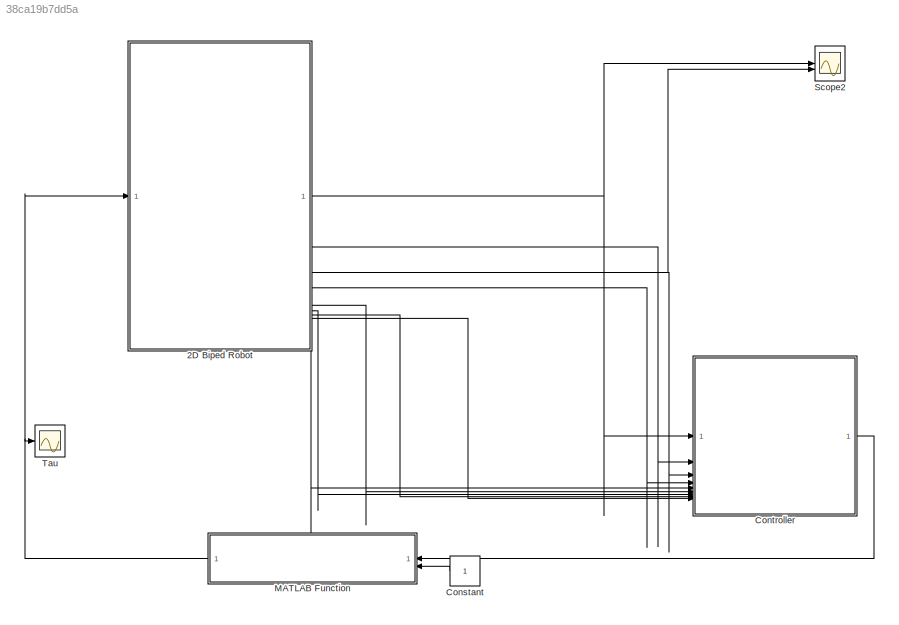
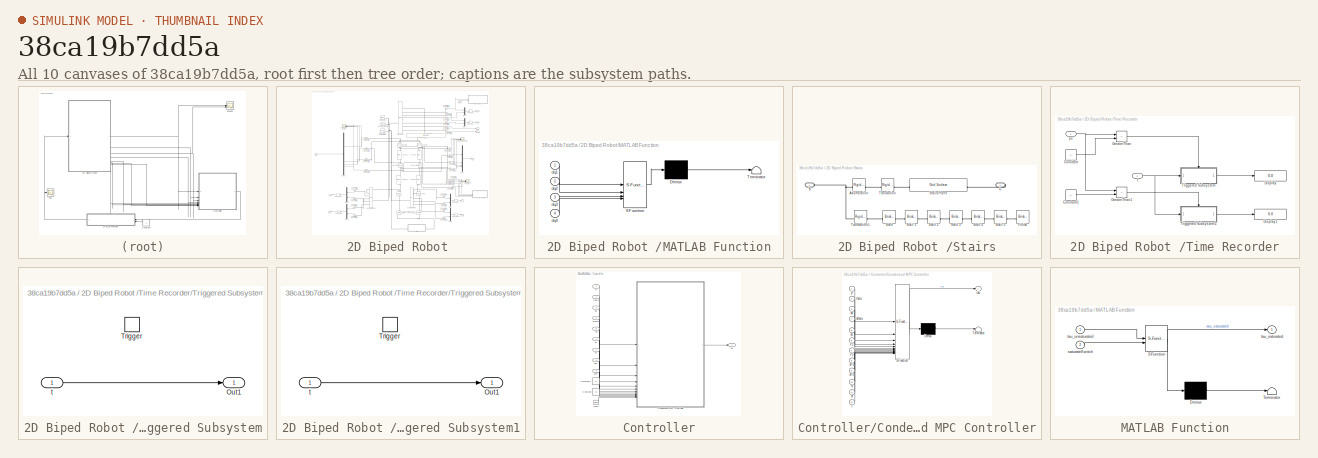
[diagram: thumbnail index - all 10 canvases of the model, root first then tree order]
MODEL slx_38ca19b7dd5a
KIND model
CONFIG AbsTol = auto
CONFIG EnableMultiTasking = off
CONFIG FixedStep = 0.0005
CONFIG InitFcn = global params;\n\n% Mass and geometry\nparams.m = 0.25;\nparams.l = 0.22;\nparams.mb = 8;\nparams.a = 0.25;\nparams.b = 0.15;\nparams.g = [0; 9.81; 0];\n\n% Moment of inerita\nIl_zz = params.m * params.l^2 / 12;\nIb_xx = params.mb * params.a^2 / 12;\nIb_yy = params.mb * params.b^2 / 12;\nIb_zz = params.mb * (params.a^2 + params.b^2) / 12;\nparams.Ib = diag([Ib_xx Ib_yy Ib_zz]);\n\n% Spatial contact force parameter...<+337ch>
CONFIG MaxStep = 1e-3
CONFIG MinStep = auto
CONFIG RelTol = 1e-2
CONFIG SampleTimeConstraint = Unconstrained
CONFIG SolverName = daessc
CONFIG StartTime = 0.0
CONFIG StopTime = 5
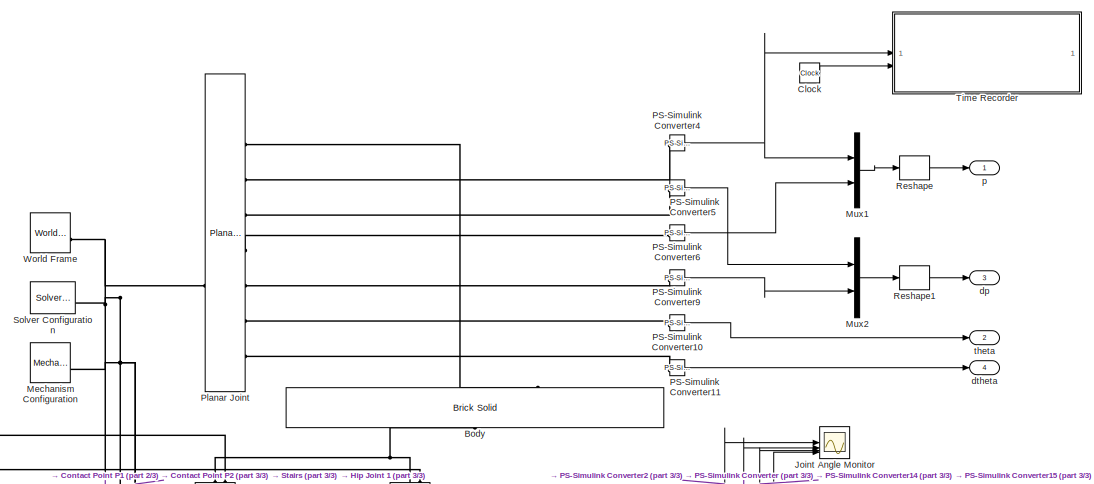
[diagram: 2D Biped Robot  - part 1/3, top right region]
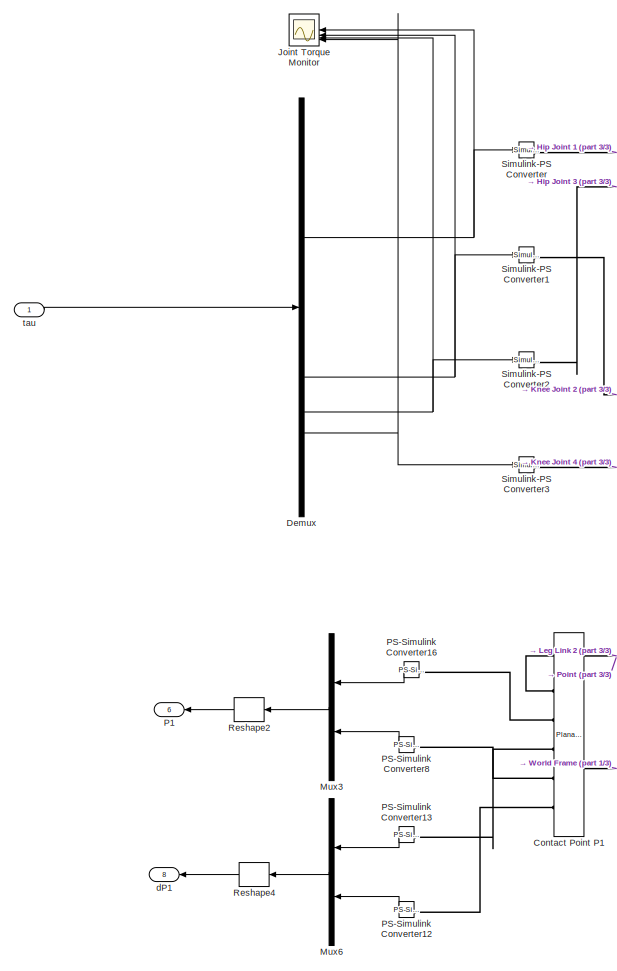
[diagram: 2D Biped Robot  - part 2/3, middle left region]
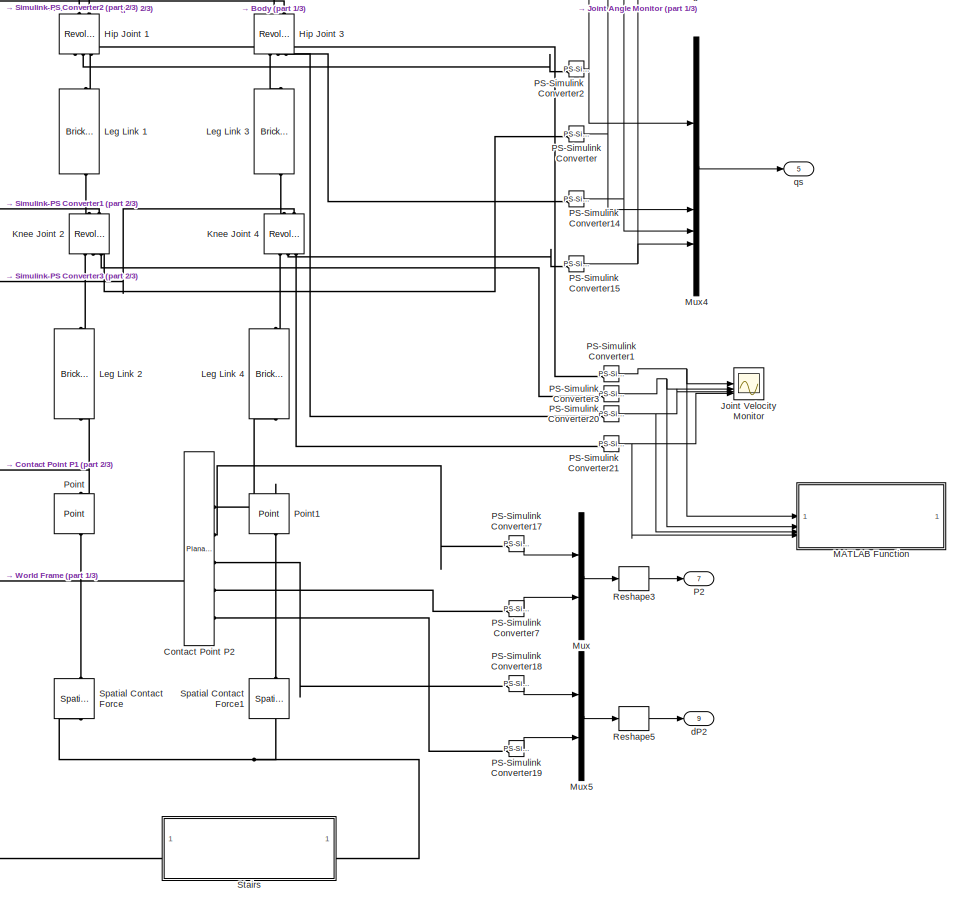
[diagram: 2D Biped Robot  - part 3/3, bottom right region]
BLOCK [SubSystem] 2D Biped Robot 
BLOCK [Reference] 2D Biped Robot /Body  REF=sm_lib/Body Elements/Brick Solid
  NameLocation = right
  SourceBlock = sm_lib/Body Elements/Brick Solid
  SourceType = Brick Solid
BLOCK [Clock] 2D Biped Robot /Clock
BLOCK [Reference] 2D Biped Robot /Contact Point P1  REF=sm_lib/Joints/Planar Joint
  NameLocation = top
  SourceBlock = sm_lib/Joints/Planar Joint
  SourceType = Planar Joint
BLOCK [Reference] 2D Biped Robot /Contact Point P2  REF=sm_lib/Joints/Planar Joint
  SourceBlock = sm_lib/Joints/Planar Joint
  SourceType = Planar Joint
BLOCK [Demux] 2D Biped Robot /Demux
BLOCK [Reference] 2D Biped Robot /Hip Joint 1  REF=sm_lib/Joints/Revolute Joint
  NameLocation = left
  SourceBlock = sm_lib/Joints/Revolute Joint
  SourceType = Revolute Joint
BLOCK [Reference] 2D Biped Robot /Hip Joint 3  REF=sm_lib/Joints/Revolute Joint
  NameLocation = left
  SourceBlock = sm_lib/Joints/Revolute Joint
  SourceType = Revolute Joint
BLOCK [Scope] 2D Biped Robot /Joint Angle Monitor
  Floating = off
  NumInputPorts = 4
  ScopeSpecificationString = Simulink.scopes.TimeScopeBlockCfg('CurrentConfiguration', extmgr.ConfigurationSet(extmgr.Configuration('Core','General UI',true),extmgr.Configuration('Core','Source UI',true),extmgr.Configuration('Sources','WiredSimulink',true,'DataLoggingVariableName','ScopeData3'),extmgr.Configuration('Visuals','Time Domain',true,'SerializedDisplays',{struct('MinYLimReal','-120','MaxYLimReal','30','YLabelReal','...<+3896ch>
BLOCK [Scope] 2D Biped Robot /Joint Torque Monitor
  Floating = off
  NameLocation = top
  NumInputPorts = 4
  ScopeSpecificationString = Simulink.scopes.TimeScopeBlockCfg('CurrentConfiguration', extmgr.ConfigurationSet(extmgr.Configuration('Core','General UI',true),extmgr.Configuration('Core','Source UI',true),extmgr.Configuration('Sources','WiredSimulink',true,'DataLoggingVariableName','ScopeData2'),extmgr.Configuration('Visuals','Time Domain',true,'SerializedDisplays',{struct('MinYLimReal','-30','MaxYLimReal','30','YLabelReal','T...<+3835ch>
BLOCK [Scope] 2D Biped Robot /Joint Velocity Monitor
  Floating = off
  NumInputPorts = 4
  ScopeSpecificationString = Simulink.scopes.TimeScopeBlockCfg('CurrentConfiguration', extmgr.ConfigurationSet(extmgr.Configuration('Core','General UI',true),extmgr.Configuration('Core','Source UI',true),extmgr.Configuration('Sources','WiredSimulink',true,'DataLoggingVariableName','ScopeData1'),extmgr.Configuration('Visuals','Time Domain',true,'SerializedDisplays',{struct('MinYLimReal','-30','MaxYLimReal','30','YLabelReal','J...<+4162ch>
BLOCK [Reference] 2D Biped Robot /Knee Joint 2  REF=sm_lib/Joints/Revolute Joint
  NameLocation = left
  SourceBlock = sm_lib/Joints/Revolute Joint
  SourceType = Revolute Joint
BLOCK [Reference] 2D Biped Robot /Knee Joint 4  REF=sm_lib/Joints/Revolute Joint
  NameLocation = left
  SourceBlock = sm_lib/Joints/Revolute Joint
  SourceType = Revolute Joint
BLOCK [Reference] 2D Biped Robot /Leg Link 1  REF=sm_lib/Body Elements/Brick Solid
  NameLocation = left
  SourceBlock = sm_lib/Body Elements/Brick Solid
  SourceType = Brick Solid
BLOCK [Reference] 2D Biped Robot /Leg Link 2  REF=sm_lib/Body Elements/Brick Solid
  NameLocation = left
  SourceBlock = sm_lib/Body Elements/Brick Solid
  SourceType = Brick Solid
BLOCK [Reference] 2D Biped Robot /Leg Link 3  REF=sm_lib/Body Elements/Brick Solid
  NameLocation = left
  SourceBlock = sm_lib/Body Elements/Brick Solid
  SourceType = Brick Solid
BLOCK [Reference] 2D Biped Robot /Leg Link 4  REF=sm_lib/Body Elements/Brick Solid
  NameLocation = left
  SourceBlock = sm_lib/Body Elements/Brick Solid
  SourceType = Brick Solid
BLOCK [SubSystem] 2D Biped Robot /MATLAB Function
  ErrorFcn = Stateflow.Translate.translate
  PermitHierarchicalResolution = ExplicitOnly
  SFBlockType = MATLAB Function
  TreatAsAtomicUnit = on
BLOCK [Demux] 2D Biped Robot /MATLAB Function/ Demux 
  Outputs = 1
BLOCK [S-Function] 2D Biped Robot /MATLAB Function/ SFunction 
  EnableBusSupport = on
  FunctionName = sf_sfun
  PortCounts = [4 1]
  SFcnIsStateOwnerBlock = off
  SFunctionDeploymentMode = off
  Tag = Stateflow S-Function 6
BLOCK [Terminator] 2D Biped Robot /MATLAB Function/ Terminator 
BLOCK [Inport] 2D Biped Robot /MATLAB Function/dq1
BLOCK [Inport] 2D Biped Robot /MATLAB Function/dq2
  Port = 2
BLOCK [Inport] 2D Biped Robot /MATLAB Function/dq3
  Port = 3
BLOCK [Inport] 2D Biped Robot /MATLAB Function/dq4
  Port = 4
BLOCK [Reference] 2D Biped Robot /Mechanism Configuration  REF=sm_lib/Utilities/Mechanism
Configuration
  SourceBlock = sm_lib/Utilities/Mechanism\nConfiguration
  SourceType = Mechanism\nConfiguration
BLOCK [Mux] 2D Biped Robot /Mux
  DisplayOption = bar
  Inputs = 2
BLOCK [Mux] 2D Biped Robot /Mux1
  DisplayOption = bar
  Inputs = 2
BLOCK [Mux] 2D Biped Robot /Mux2
  DisplayOption = bar
  Inputs = 2
BLOCK [Mux] 2D Biped Robot /Mux3
  DisplayOption = bar
  Inputs = 2
  NameLocation = top
BLOCK [Mux] 2D Biped Robot /Mux4
  DisplayOption = bar
BLOCK [Mux] 2D Biped Robot /Mux5
  DisplayOption = bar
  Inputs = 2
BLOCK [Mux] 2D Biped Robot /Mux6
  DisplayOption = bar
  Inputs = 2
  NameLocation = top
BLOCK [Outport] 2D Biped Robot /P1
  NameLocation = top
  Port = 6
BLOCK [Outport] 2D Biped Robot /P2
  Port = 7
BLOCK [Reference] 2D Biped Robot /PS-Simulink Converter  REF=nesl_utility/PS-Simulink
Converter
  SourceBlock = nesl_utility/PS-Simulink\nConverter
  SourceType = PS-Simulink\nConverter
BLOCK [Reference] 2D Biped Robot /PS-Simulink Converter1  REF=nesl_utility/PS-Simulink
Converter
  SourceBlock = nesl_utility/PS-Simulink\nConverter
  SourceType = PS-Simulink\nConverter
BLOCK [Reference] 2D Biped Robot /PS-Simulink Converter10  REF=nesl_utility/PS-Simulink
Converter
  SourceBlock = nesl_utility/PS-Simulink\nConverter
  SourceType = PS-Simulink\nConverter
BLOCK [Reference] 2D Biped Robot /PS-Simulink Converter11  REF=nesl_utility/PS-Simulink
Converter
  SourceBlock = nesl_utility/PS-Simulink\nConverter
  SourceType = PS-Simulink\nConverter
BLOCK [Reference] 2D Biped Robot /PS-Simulink Converter12  REF=nesl_utility/PS-Simulink
Converter
  NameLocation = top
  SourceBlock = nesl_utility/PS-Simulink\nConverter
  SourceType = PS-Simulink\nConverter
BLOCK [Reference] 2D Biped Robot /PS-Simulink Converter13  REF=nesl_utility/PS-Simulink
Converter
  NameLocation = top
  SourceBlock = nesl_utility/PS-Simulink\nConverter
  SourceType = PS-Simulink\nConverter
BLOCK [Reference] 2D Biped Robot /PS-Simulink Converter14  REF=nesl_utility/PS-Simulink
Converter
  SourceBlock = nesl_utility/PS-Simulink\nConverter
  SourceType = PS-Simulink\nConverter
BLOCK [Reference] 2D Biped Robot /PS-Simulink Converter15  REF=nesl_utility/PS-Simulink
Converter
  SourceBlock = nesl_utility/PS-Simulink\nConverter
  SourceType = PS-Simulink\nConverter
BLOCK [Reference] 2D Biped Robot /PS-Simulink Converter16  REF=nesl_utility/PS-Simulink
Converter
  NameLocation = top
  SourceBlock = nesl_utility/PS-Simulink\nConverter
  SourceType = PS-Simulink\nConverter
BLOCK [Reference] 2D Biped Robot /PS-Simulink Converter17  REF=nesl_utility/PS-Simulink
Converter
  SourceBlock = nesl_utility/PS-Simulink\nConverter
  SourceType = PS-Simulink\nConverter
BLOCK [Reference] 2D Biped Robot /PS-Simulink Converter18  REF=nesl_utility/PS-Simulink
Converter
  SourceBlock = nesl_utility/PS-Simulink\nConverter
  SourceType = PS-Simulink\nConverter
BLOCK [Reference] 2D Biped Robot /PS-Simulink Converter19  REF=nesl_utility/PS-Simulink
Converter
  SourceBlock = nesl_utility/PS-Simulink\nConverter
  SourceType = PS-Simulink\nConverter
BLOCK [Reference] 2D Biped Robot /PS-Simulink Converter2  REF=nesl_utility/PS-Simulink
Converter
  SourceBlock = nesl_utility/PS-Simulink\nConverter
  SourceType = PS-Simulink\nConverter
BLOCK [Reference] 2D Biped Robot /PS-Simulink Converter20  REF=nesl_utility/PS-Simulink
Converter
  SourceBlock = nesl_utility/PS-Simulink\nConverter
  SourceType = PS-Simulink\nConverter
BLOCK [Reference] 2D Biped Robot /PS-Simulink Converter21  REF=nesl_utility/PS-Simulink
Converter
  SourceBlock = nesl_utility/PS-Simulink\nConverter
  SourceType = PS-Simulink\nConverter
BLOCK [Reference] 2D Biped Robot /PS-Simulink Converter3  REF=nesl_utility/PS-Simulink
Converter
  SourceBlock = nesl_utility/PS-Simulink\nConverter
  SourceType = PS-Simulink\nConverter
BLOCK [Reference] 2D Biped Robot /PS-Simulink Converter4  REF=nesl_utility/PS-Simulink
Converter
  SourceBlock = nesl_utility/PS-Simulink\nConverter
  SourceType = PS-Simulink\nConverter
BLOCK [Reference] 2D Biped Robot /PS-Simulink Converter5  REF=nesl_utility/PS-Simulink
Converter
  SourceBlock = nesl_utility/PS-Simulink\nConverter
  SourceType = PS-Simulink\nConverter
BLOCK [Reference] 2D Biped Robot /PS-Simulink Converter6  REF=nesl_utility/PS-Simulink
Converter
  SourceBlock = nesl_utility/PS-Simulink\nConverter
  SourceType = PS-Simulink\nConverter
BLOCK [Reference] 2D Biped Robot /PS-Simulink Converter7  REF=nesl_utility/PS-Simulink
Converter
  SourceBlock = nesl_utility/PS-Simulink\nConverter
  SourceType = PS-Simulink\nConverter
BLOCK [Reference] 2D Biped Robot /PS-Simulink Converter8  REF=nesl_utility/PS-Simulink
Converter
  NameLocation = top
  SourceBlock = nesl_utility/PS-Simulink\nConverter
  SourceType = PS-Simulink\nConverter
BLOCK [Reference] 2D Biped Robot /PS-Simulink Converter9  REF=nesl_utility/PS-Simulink
Converter
  SourceBlock = nesl_utility/PS-Simulink\nConverter
  SourceType = PS-Simulink\nConverter
BLOCK [Reference] 2D Biped Robot /Planar Joint  REF=sm_lib/Joints/Planar Joint
  SourceBlock = sm_lib/Joints/Planar Joint
  SourceType = Planar Joint
BLOCK [Reference] 2D Biped Robot /Point  REF=sm_lib/Curves and Surfaces/Point
  NameLocation = left
  SourceBlock = sm_lib/Curves and Surfaces/Point
  SourceType = Point
BLOCK [Reference] 2D Biped Robot /Point1  REF=sm_lib/Curves and Surfaces/Point
  NameLocation = left
  SourceBlock = sm_lib/Curves and Surfaces/Point
  SourceType = Point
BLOCK [Reshape] 2D Biped Robot /Reshape
  OutputDimensionality = Customize
  OutputDimensions = [2,1]
BLOCK [Reshape] 2D Biped Robot /Reshape1
  OutputDimensionality = Customize
  OutputDimensions = [2,1]
BLOCK [Reshape] 2D Biped Robot /Reshape2
  NameLocation = top
  OutputDimensionality = Customize
  OutputDimensions = [2,1]
BLOCK [Reshape] 2D Biped Robot /Reshape3
  OutputDimensionality = Customize
  OutputDimensions = [2,1]
BLOCK [Reshape] 2D Biped Robot /Reshape4
  NameLocation = top
  OutputDimensionality = Customize
  OutputDimensions = [2,1]
BLOCK [Reshape] 2D Biped Robot /Reshape5
  OutputDimensionality = Customize
  OutputDimensions = [2,1]
BLOCK [Reference] 2D Biped Robot /Simulink-PS Converter  REF=nesl_utility/Simulink-PS
Converter
  SourceBlock = nesl_utility/Simulink-PS\nConverter
  SourceType = Simulink-PS\nConverter
BLOCK [Reference] 2D Biped Robot /Simulink-PS Converter1  REF=nesl_utility/Simulink-PS
Converter
  SourceBlock = nesl_utility/Simulink-PS\nConverter
  SourceType = Simulink-PS\nConverter
BLOCK [Reference] 2D Biped Robot /Simulink-PS Converter2  REF=nesl_utility/Simulink-PS
Converter
  SourceBlock = nesl_utility/Simulink-PS\nConverter
  SourceType = Simulink-PS\nConverter
BLOCK [Reference] 2D Biped Robot /Simulink-PS Converter3  REF=nesl_utility/Simulink-PS
Converter
  SourceBlock = nesl_utility/Simulink-PS\nConverter
  SourceType = Simulink-PS\nConverter
BLOCK [Reference] 2D Biped Robot /Solver Configuration  REF=nesl_utility/Solver
Configuration
  SourceBlock = nesl_utility/Solver\nConfiguration
  SourceType = Solver\nConfiguration
BLOCK [Reference] 2D Biped Robot /Spatial Contact Force  REF=sm_lib/Forces and
Torques/Spatial
Contact Force
  NameLocation = right
  SourceBlock = sm_lib/Forces and\nTorques/Spatial\nContact Force
  SourceType = Spatial\nContact Force
BLOCK [Reference] 2D Biped Robot /Spatial Contact Force1  REF=sm_lib/Forces and
Torques/Spatial
Contact Force
  NameLocation = right
  SourceBlock = sm_lib/Forces and\nTorques/Spatial\nContact Force
  SourceType = Spatial\nContact Force
BLOCK [SubSystem] 2D Biped Robot /Stairs
BLOCK [Reference] 2D Biped Robot /Stairs/Axis Rotation  REF=sm_lib/Frames and
Transforms/Rigid
Transform
  SourceBlock = sm_lib/Frames and\nTransforms/Rigid\nTransform
  SourceType = Rigid\nTransform
BLOCK [PMIOPort] 2D Biped Robot /Stairs/B
  Side = Left
BLOCK [Reference] 2D Biped Robot /Stairs/Finish  REF=sm_lib/Body Elements/Brick Solid
  SourceBlock = sm_lib/Body Elements/Brick Solid
  SourceType = Brick Solid
BLOCK [PMIOPort] 2D Biped Robot /Stairs/G
  Port = 2
  Side = Right
BLOCK [Reference] 2D Biped Robot /Stairs/Stair 1  REF=sm_lib/Body Elements/Brick Solid
  SourceBlock = sm_lib/Body Elements/Brick Solid
  SourceType = Brick Solid
BLOCK [Reference] 2D Biped Robot /Stairs/Stair 2  REF=sm_lib/Body Elements/Brick Solid
  SourceBlock = sm_lib/Body Elements/Brick Solid
  SourceType = Brick Solid
BLOCK [Reference] 2D Biped Robot /Stairs/Stair 3  REF=sm_lib/Body Elements/Brick Solid
  SourceBlock = sm_lib/Body Elements/Brick Solid
  SourceType = Brick Solid
BLOCK [Reference] 2D Biped Robot /Stairs/Stair 4  REF=sm_lib/Body Elements/Brick Solid
  SourceBlock = sm_lib/Body Elements/Brick Solid
  SourceType = Brick Solid
BLOCK [Reference] 2D Biped Robot /Stairs/Stair 5  REF=sm_lib/Body Elements/Brick Solid
  SourceBlock = sm_lib/Body Elements/Brick Solid
  SourceType = Brick Solid
BLOCK [Reference] 2D Biped Robot /Stairs/Stairs Plane  REF=sm_lib/Curves and Surfaces/Grid Surface
  SourceBlock = sm_lib/Curves and Surfaces/Grid Surface
  SourceType = Grid Surface
BLOCK [Reference] 2D Biped Robot /Stairs/Start  REF=sm_lib/Body Elements/Brick Solid
  SourceBlock = sm_lib/Body Elements/Brick Solid
  SourceType = Brick Solid
BLOCK [Reference] 2D Biped Robot /Stairs/Translation  REF=sm_lib/Frames and
Transforms/Rigid
Transform
  SourceBlock = sm_lib/Frames and\nTransforms/Rigid\nTransform
  SourceType = Rigid\nTransform
BLOCK [Reference] 2D Biped Robot /Stairs/Translation1  REF=sm_lib/Frames and
Transforms/Rigid
Transform
  SourceBlock = sm_lib/Frames and\nTransforms/Rigid\nTransform
  SourceType = Rigid\nTransform
BLOCK [SubSystem] 2D Biped Robot /Time Recorder
BLOCK [Constant] 2D Biped Robot /Time Recorder/Constant
BLOCK [Constant] 2D Biped Robot /Time Recorder/Constant1
  Value = 2
BLOCK [Display] 2D Biped Robot /Time Recorder/Display
  Decimation = 1
BLOCK [Display] 2D Biped Robot /Time Recorder/Display1
  Decimation = 1
BLOCK [RelationalOperator] 2D Biped Robot /Time Recorder/GreaterThan
  InputSameDT = off
  Operator = >
  OutDataTypeStr = boolean
  RndMeth = Simplest
BLOCK [RelationalOperator] 2D Biped Robot /Time Recorder/GreaterThan1
  InputSameDT = off
  Operator = >
  OutDataTypeStr = boolean
  RndMeth = Simplest
BLOCK [SubSystem] 2D Biped Robot /Time Recorder/Triggered Subsystem
  TreatAsAtomicUnit = on
BLOCK [Outport] 2D Biped Robot /Time Recorder/Triggered Subsystem/Out1
BLOCK [TriggerPort] 2D Biped Robot /Time Recorder/Triggered Subsystem/Trigger
  StatesWhenEnabling = held
  VariantControl = (inherit)
BLOCK [Inport] 2D Biped Robot /Time Recorder/Triggered Subsystem/t
BLOCK [SubSystem] 2D Biped Robot /Time Recorder/Triggered Subsystem1
  TreatAsAtomicUnit = on
BLOCK [Outport] 2D Biped Robot /Time Recorder/Triggered Subsystem1/Out1
BLOCK [TriggerPort] 2D Biped Robot /Time Recorder/Triggered Subsystem1/Trigger
  StatesWhenEnabling = held
  VariantControl = (inherit)
BLOCK [Inport] 2D Biped Robot /Time Recorder/Triggered Subsystem1/t
BLOCK [Inport] 2D Biped Robot /Time Recorder/px
BLOCK [Inport] 2D Biped Robot /Time Recorder/t
  Port = 2
BLOCK [Reference] 2D Biped Robot /World Frame  REF=sm_lib/Frames and
Transforms/World Frame
  SourceBlock = sm_lib/Frames and\nTransforms/World Frame
  SourceType = World Frame
BLOCK [Outport] 2D Biped Robot /dP1
  NameLocation = top
  Port = 8
BLOCK [Outport] 2D Biped Robot /dP2
  Port = 9
BLOCK [Outport] 2D Biped Robot /dp
  Port = 3
BLOCK [Outport] 2D Biped Robot /dtheta
  Port = 4
BLOCK [Outport] 2D Biped Robot /p
BLOCK [Outport] 2D Biped Robot /qs
  Port = 5
BLOCK [Inport] 2D Biped Robot /tau
BLOCK [Outport] 2D Biped Robot /theta
  Port = 2
BLOCK [Constant] Constant
  NameLocation = top
BLOCK [SubSystem] Controller
BLOCK [Clock] Controller/Clock
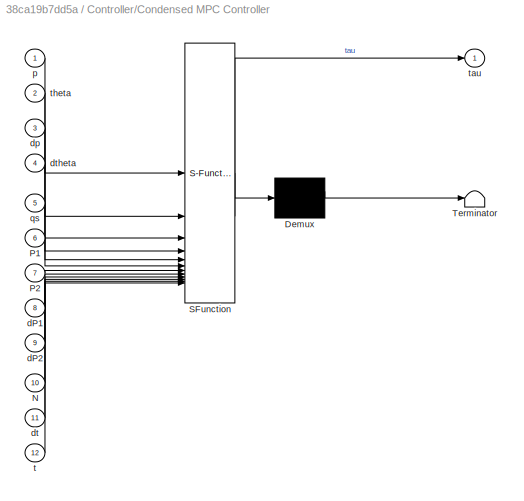
BLOCK [SubSystem] Controller/Condensed MPC Controller
  ErrorFcn = Stateflow.Translate.translate
  PermitHierarchicalResolution = ExplicitOnly
  SFBlockType = MATLAB Function
  TreatAsAtomicUnit = on
BLOCK [Demux] Controller/Condensed MPC Controller/ Demux 
  Outputs = 1
BLOCK [S-Function] Controller/Condensed MPC Controller/ SFunction 
  EnableBusSupport = on
  FunctionName = sf_sfun
  PortCounts = [12 2]
  SFcnIsStateOwnerBlock = off
  SFunctionDeploymentMode = off
  Tag = Stateflow S-Function 3
BLOCK [Terminator] Controller/Condensed MPC Controller/ Terminator 
BLOCK [Inport] Controller/Condensed MPC Controller/N
  Port = 10
BLOCK [Inport] Controller/Condensed MPC Controller/P1
  Port = 6
BLOCK [Inport] Controller/Condensed MPC Controller/P2
  Port = 7
BLOCK [Inport] Controller/Condensed MPC Controller/dP1
  Port = 8
BLOCK [Inport] Controller/Condensed MPC Controller/dP2
  Port = 9
BLOCK [Inport] Controller/Condensed MPC Controller/dp
  Port = 3
BLOCK [Inport] Controller/Condensed MPC Controller/dt
  Port = 11
BLOCK [Inport] Controller/Condensed MPC Controller/dtheta
  Port = 4
BLOCK [Inport] Controller/Condensed MPC Controller/p
BLOCK [Inport] Controller/Condensed MPC Controller/qs
  Port = 5
BLOCK [Inport] Controller/Condensed MPC Controller/t
  Port = 12
BLOCK [Outport] Controller/Condensed MPC Controller/tau
BLOCK [Inport] Controller/Condensed MPC Controller/theta
  Port = 2
BLOCK [Constant] Controller/Constant
  Value = dt
BLOCK [Constant] Controller/Constant1
  Value = N
BLOCK [Inport] Controller/P1
  Port = 6
BLOCK [Inport] Controller/P2
  Port = 7
BLOCK [Inport] Controller/dP1
  Port = 8
BLOCK [Inport] Controller/dP2
  Port = 9
BLOCK [Inport] Controller/dp
  Port = 3
BLOCK [Inport] Controller/dtheta
  Port = 4
BLOCK [Inport] Controller/p
BLOCK [Inport] Controller/qs
  Port = 5
BLOCK [Outport] Controller/tau
BLOCK [Inport] Controller/theta
  Port = 2
BLOCK [SubSystem] MATLAB Function
  ErrorFcn = Stateflow.Translate.translate
  NameLocation = top
  PermitHierarchicalResolution = ExplicitOnly
  SFBlockType = MATLAB Function
  TreatAsAtomicUnit = on
BLOCK [Demux] MATLAB Function/ Demux 
  Outputs = 1
BLOCK [S-Function] MATLAB Function/ SFunction 
  EnableBusSupport = on
  FunctionName = sf_sfun
  PortCounts = [2 2]
  SFcnIsStateOwnerBlock = off
  SFunctionDeploymentMode = off
  Tag = Stateflow S-Function 1
BLOCK [Terminator] MATLAB Function/ Terminator 
BLOCK [Inport] MATLAB Function/saturateSwitch
  Port = 2
BLOCK [Outport] MATLAB Function/tau_saturated
BLOCK [Inport] MATLAB Function/tau_unsaturated
BLOCK [Scope] Scope2
  Floating = off
  NumInputPorts = 2
  ScopeSpecificationString = Simulink.scopes.TimeScopeBlockCfg('CurrentConfiguration', extmgr.ConfigurationSet(extmgr.Configuration('Core','General UI',true),extmgr.Configuration('Core','Source UI',true),extmgr.Configuration('Sources','WiredSimulink',true,'DataLoggingVariableName','ScopeData1'),extmgr.Configuration('Visuals','Time Domain',true,'SerializedDisplays',{struct('MinYLimReal','0','MaxYLimReal','10','YLabelReal','','...<+2231ch>
BLOCK [Scope] Tau
  Floating = off
  NumInputPorts = 1
  ScopeSpecificationString = Simulink.scopes.TimeScopeBlockCfg('CurrentConfiguration', extmgr.ConfigurationSet(extmgr.Configuration('Core','General UI',true),extmgr.Configuration('Core','Source UI',true),extmgr.Configuration('Sources','WiredSimulink',true,'DataLoggingVariableName','ScopeData1'),extmgr.Configuration('Visuals','Time Domain',true,'SerializedDisplays',{struct('MinYLimReal','-153.71109','MaxYLimReal','97.60064','Y...<+1622ch>
LINE 2D Biped Robot /Clock:1 -> 2D Biped Robot /Time Recorder:2
NET 2D Biped Robot /Demux:1 -> 2D Biped Robot /Joint Torque Monitor:1, 2D Biped Robot /Simulink-PS Converter:1
NET 2D Biped Robot /Demux:2 -> 2D Biped Robot /Joint Torque Monitor:2, 2D Biped Robot /Simulink-PS Converter1:1
NET 2D Biped Robot /Demux:3 -> 2D Biped Robot /Joint Torque Monitor:3, 2D Biped Robot /Simulink-PS Converter2:1
NET 2D Biped Robot /Demux:4 -> 2D Biped Robot /Joint Torque Monitor:4, 2D Biped Robot /Simulink-PS Converter3:1
LINE 2D Biped Robot /Mux1:1 -> 2D Biped Robot /Reshape:1
LINE 2D Biped Robot /Mux2:1 -> 2D Biped Robot /Reshape1:1
LINE 2D Biped Robot /Mux3:1 -> 2D Biped Robot /Reshape2:1
LINE 2D Biped Robot /Mux4:1 -> 2D Biped Robot /qs:1
LINE 2D Biped Robot /Mux5:1 -> 2D Biped Robot /Reshape5:1
LINE 2D Biped Robot /Mux6:1 -> 2D Biped Robot /Reshape4:1
LINE 2D Biped Robot /Mux:1 -> 2D Biped Robot /Reshape3:1
LINE 2D Biped Robot /PS-Simulink Converter10:1 -> 2D Biped Robot /theta:1
LINE 2D Biped Robot /PS-Simulink Converter11:1 -> 2D Biped Robot /dtheta:1
LINE 2D Biped Robot /PS-Simulink Converter12:1 -> 2D Biped Robot /Mux6:2
LINE 2D Biped Robot /PS-Simulink Converter13:1 -> 2D Biped Robot /Mux6:1
NET 2D Biped Robot /PS-Simulink Converter14:1 -> 2D Biped Robot /Joint Angle Monitor:3, 2D Biped Robot /Mux4:3
NET 2D Biped Robot /PS-Simulink Converter15:1 -> 2D Biped Robot /Joint Angle Monitor:4, 2D Biped Robot /Mux4:4
LINE 2D Biped Robot /PS-Simulink Converter16:1 -> 2D Biped Robot /Mux3:1
LINE 2D Biped Robot /PS-Simulink Converter17:1 -> 2D Biped Robot /Mux:1
LINE 2D Biped Robot /PS-Simulink Converter18:1 -> 2D Biped Robot /Mux5:1
LINE 2D Biped Robot /PS-Simulink Converter19:1 -> 2D Biped Robot /Mux5:2
NET 2D Biped Robot /PS-Simulink Converter1:1 -> 2D Biped Robot /Joint Velocity Monitor:1, 2D Biped Robot /MATLAB Function:1
NET 2D Biped Robot /PS-Simulink Converter20:1 -> 2D Biped Robot /Joint Velocity Monitor:3, 2D Biped Robot /MATLAB Function:3
NET 2D Biped Robot /PS-Simulink Converter21:1 -> 2D Biped Robot /Joint Velocity Monitor:4, 2D Biped Robot /MATLAB Function:4
NET 2D Biped Robot /PS-Simulink Converter2:1 -> 2D Biped Robot /Joint Angle Monitor:1, 2D Biped Robot /Mux4:1
NET 2D Biped Robot /PS-Simulink Converter3:1 -> 2D Biped Robot /Joint Velocity Monitor:2, 2D Biped Robot /MATLAB Function:2
NET 2D Biped Robot /PS-Simulink Converter4:1 -> 2D Biped Robot /Mux1:1, 2D Biped Robot /Time Recorder:1
LINE 2D Biped Robot /PS-Simulink Converter5:1 -> 2D Biped Robot /Mux2:1
LINE 2D Biped Robot /PS-Simulink Converter6:1 -> 2D Biped Robot /Mux1:2
LINE 2D Biped Robot /PS-Simulink Converter7:1 -> 2D Biped Robot /Mux:2
LINE 2D Biped Robot /PS-Simulink Converter8:1 -> 2D Biped Robot /Mux3:2
LINE 2D Biped Robot /PS-Simulink Converter9:1 -> 2D Biped Robot /Mux2:2
NET 2D Biped Robot /PS-Simulink Converter:1 -> 2D Biped Robot /Joint Angle Monitor:2, 2D Biped Robot /Mux4:2
LINE 2D Biped Robot /Reshape1:1 -> 2D Biped Robot /dp:1
LINE 2D Biped Robot /Reshape2:1 -> 2D Biped Robot /P1:1
LINE 2D Biped Robot /Reshape3:1 -> 2D Biped Robot /P2:1
LINE 2D Biped Robot /Reshape4:1 -> 2D Biped Robot /dP1:1
LINE 2D Biped Robot /Reshape5:1 -> 2D Biped Robot /dP2:1
LINE 2D Biped Robot /Reshape:1 -> 2D Biped Robot /p:1
LINE 2D Biped Robot /Time Recorder/Constant1:1 -> 2D Biped Robot /Time Recorder/GreaterThan1:2
LINE 2D Biped Robot /Time Recorder/Constant:1 -> 2D Biped Robot /Time Recorder/GreaterThan:2
LINE 2D Biped Robot /Time Recorder/GreaterThan1:1 -> 2D Biped Robot /Time Recorder/Triggered Subsystem1:trigger
LINE 2D Biped Robot /Time Recorder/GreaterThan:1 -> 2D Biped Robot /Time Recorder/Triggered Subsystem:trigger
LINE 2D Biped Robot /Time Recorder/Triggered Subsystem/t:1 -> 2D Biped Robot /Time Recorder/Triggered Subsystem/Out1:1
LINE 2D Biped Robot /Time Recorder/Triggered Subsystem1/t:1 -> 2D Biped Robot /Time Recorder/Triggered Subsystem1/Out1:1
LINE 2D Biped Robot /Time Recorder/Triggered Subsystem1:1 -> 2D Biped Robot /Time Recorder/Display1:1
LINE 2D Biped Robot /Time Recorder/Triggered Subsystem:1 -> 2D Biped Robot /Time Recorder/Display:1
NET 2D Biped Robot /Time Recorder/px:1 -> 2D Biped Robot /Time Recorder/GreaterThan1:1, 2D Biped Robot /Time Recorder/GreaterThan:1
NET 2D Biped Robot /Time Recorder/t:1 -> 2D Biped Robot /Time Recorder/Triggered Subsystem1:1, 2D Biped Robot /Time Recorder/Triggered Subsystem:1
LINE 2D Biped Robot /tau:1 -> 2D Biped Robot /Demux:1
NET 2D Biped Robot :1 -> Controller:1, Scope2:1
LINE 2D Biped Robot :2 -> Controller:2
NET 2D Biped Robot :3 -> Controller:3, Scope2:2
LINE 2D Biped Robot :4 -> Controller:4
LINE 2D Biped Robot :5 -> Controller:5
LINE 2D Biped Robot :6 -> Controller:6
LINE 2D Biped Robot :7 -> Controller:7
LINE 2D Biped Robot :8 -> Controller:8
LINE 2D Biped Robot :9 -> Controller:9
LINE Constant:1 -> MATLAB Function:2
LINE Controller/Clock:1 -> Controller/Condensed MPC Controller:12
LINE Controller/Condensed MPC Controller:1 -> Controller/tau:1
LINE Controller/Constant1:1 -> Controller/Condensed MPC Controller:10
LINE Controller/Constant:1 -> Controller/Condensed MPC Controller:11
LINE Controller/P1:1 -> Controller/Condensed MPC Controller:6
LINE Controller/P2:1 -> Controller/Condensed MPC Controller:7
LINE Controller/dP1:1 -> Controller/Condensed MPC Controller:8
LINE Controller/dP2:1 -> Controller/Condensed MPC Controller:9
LINE Controller/dp:1 -> Controller/Condensed MPC Controller:3
LINE Controller/dtheta:1 -> Controller/Condensed MPC Controller:4
LINE Controller/p:1 -> Controller/Condensed MPC Controller:1
LINE Controller/qs:1 -> Controller/Condensed MPC Controller:5
LINE Controller/theta:1 -> Controller/Condensed MPC Controller:2
LINE Controller:1 -> MATLAB Function:1
NET MATLAB Function:1 -> 2D Biped Robot :1, Tau:1
PNET net1: 2D Biped Robot /Body:LConn1 -- 2D Biped Robot /Hip Joint 1:LConn1 -- 2D Biped Robot /Hip Joint 3:LConn1
PLINE 2D Biped Robot /Body:RConn1 -- 2D Biped Robot /Planar Joint:RConn1
PNET net2: 2D Biped Robot /Contact Point P1:LConn1 -- 2D Biped Robot /Contact Point P2:LConn1 -- 2D Biped Robot /Mechanism Configuration:RConn1 -- 2D Biped Robot /Planar Joint:LConn1 -- 2D Biped Robot /Solver Configuration:RConn1 -- 2D Biped Robot /Stairs:LConn1 -- 2D Biped Robot /World Frame:RConn1
PNET net3: 2D Biped Robot /Contact Point P1:RConn1 -- 2D Biped Robot /Leg Link 2:RConn1 -- 2D Biped Robot /Point:LConn1
PLINE 2D Biped Robot /Contact Point P1:RConn2 -- 2D Biped Robot /PS-Simulink Converter16:LConn1
PLINE 2D Biped Robot /Contact Point P1:RConn3 -- 2D Biped Robot /PS-Simulink Converter13:LConn1
PLINE 2D Biped Robot /Contact Point P1:RConn4 -- 2D Biped Robot /PS-Simulink Converter8:LConn1
PLINE 2D Biped Robot /Contact Point P1:RConn5 -- 2D Biped Robot /PS-Simulink Converter12:LConn1
PNET net4: 2D Biped Robot /Contact Point P2:RConn1 -- 2D Biped Robot /Leg Link 4:RConn1 -- 2D Biped Robot /Point1:LConn1
PLINE 2D Biped Robot /Contact Point P2:RConn2 -- 2D Biped Robot /PS-Simulink Converter17:LConn1
PLINE 2D Biped Robot /Contact Point P2:RConn3 -- 2D Biped Robot /PS-Simulink Converter18:LConn1
PLINE 2D Biped Robot /Contact Point P2:RConn4 -- 2D Biped Robot /PS-Simulink Converter7:LConn1
PLINE 2D Biped Robot /Contact Point P2:RConn5 -- 2D Biped Robot /PS-Simulink Converter19:LConn1
PLINE 2D Biped Robot /Hip Joint 1:LConn2 -- 2D Biped Robot /Simulink-PS Converter:RConn1
PLINE 2D Biped Robot /Hip Joint 1:RConn1 -- 2D Biped Robot /Leg Link 1:LConn1
PLINE 2D Biped Robot /Hip Joint 1:RConn2 -- 2D Biped Robot /PS-Simulink Converter2:LConn1
PLINE 2D Biped Robot /Hip Joint 1:RConn3 -- 2D Biped Robot /PS-Simulink Converter1:LConn1
PLINE 2D Biped Robot /Hip Joint 3:LConn2 -- 2D Biped Robot /Simulink-PS Converter2:RConn1
PLINE 2D Biped Robot /Hip Joint 3:RConn1 -- 2D Biped Robot /Leg Link 3:LConn1
PLINE 2D Biped Robot /Hip Joint 3:RConn2 -- 2D Biped Robot /PS-Simulink Converter14:LConn1
PLINE 2D Biped Robot /Hip Joint 3:RConn3 -- 2D Biped Robot /PS-Simulink Converter20:LConn1
PLINE 2D Biped Robot /Knee Joint 2:LConn1 -- 2D Biped Robot /Leg Link 1:RConn1
PLINE 2D Biped Robot /Knee Joint 2:LConn2 -- 2D Biped Robot /Simulink-PS Converter1:RConn1
PLINE 2D Biped Robot /Knee Joint 2:RConn1 -- 2D Biped Robot /Leg Link 2:LConn1
PLINE 2D Biped Robot /Knee Joint 2:RConn2 -- 2D Biped Robot /PS-Simulink Converter:LConn1
PLINE 2D Biped Robot /Knee Joint 2:RConn3 -- 2D Biped Robot /PS-Simulink Converter3:LConn1
PLINE 2D Biped Robot /Knee Joint 4:LConn1 -- 2D Biped Robot /Leg Link 3:RConn1
PLINE 2D Biped Robot /Knee Joint 4:LConn2 -- 2D Biped Robot /Simulink-PS Converter3:RConn1
PLINE 2D Biped Robot /Knee Joint 4:RConn1 -- 2D Biped Robot /Leg Link 4:LConn1
PLINE 2D Biped Robot /Knee Joint 4:RConn2 -- 2D Biped Robot /PS-Simulink Converter15:LConn1
PLINE 2D Biped Robot /Knee Joint 4:RConn3 -- 2D Biped Robot /PS-Simulink Converter21:LConn1
PLINE 2D Biped Robot /PS-Simulink Converter10:LConn1 -- 2D Biped Robot /Planar Joint:RConn6
PLINE 2D Biped Robot /PS-Simulink Converter11:LConn1 -- 2D Biped Robot /Planar Joint:RConn7
PLINE 2D Biped Robot /PS-Simulink Converter4:LConn1 -- 2D Biped Robot /Planar Joint:RConn2
PLINE 2D Biped Robot /PS-Simulink Converter5:LConn1 -- 2D Biped Robot /Planar Joint:RConn3
PLINE 2D Biped Robot /PS-Simulink Converter6:LConn1 -- 2D Biped Robot /Planar Joint:RConn4
PLINE 2D Biped Robot /PS-Simulink Converter9:LConn1 -- 2D Biped Robot /Planar Joint:RConn5
PLINE 2D Biped Robot /Point1:RConn1 -- 2D Biped Robot /Spatial Contact Force1:RConn1
PLINE 2D Biped Robot /Point:RConn1 -- 2D Biped Robot /Spatial Contact Force:RConn1
PNET net5: 2D Biped Robot /Spatial Contact Force1:LConn1 -- 2D Biped Robot /Spatial Contact Force:LConn1 -- 2D Biped Robot /Stairs:RConn1
PNET net6: 2D Biped Robot /Stairs/Axis Rotation:LConn1 -- 2D Biped Robot /Stairs/B:RConn1 -- 2D Biped Robot /Stairs/Translation1:LConn1
PLINE 2D Biped Robot /Stairs/Axis Rotation:RConn1 -- 2D Biped Robot /Stairs/Translation:LConn1
PLINE 2D Biped Robot /Stairs/Finish:LConn1 -- 2D Biped Robot /Stairs/Stair 5:RConn1
PLINE 2D Biped Robot /Stairs/G:RConn1 -- 2D Biped Robot /Stairs/Stairs Plane:RConn1
PLINE 2D Biped Robot /Stairs/Stair 1:LConn1 -- 2D Biped Robot /Stairs/Start:RConn1
PLINE 2D Biped Robot /Stairs/Stair 1:RConn1 -- 2D Biped Robot /Stairs/Stair 2:LConn1
PLINE 2D Biped Robot /Stairs/Stair 2:RConn1 -- 2D Biped Robot /Stairs/Stair 3:LConn1
PLINE 2D Biped Robot /Stairs/Stair 3:RConn1 -- 2D Biped Robot /Stairs/Stair 4:LConn1
PLINE 2D Biped Robot /Stairs/Stair 4:RConn1 -- 2D Biped Robot /Stairs/Stair 5:LConn1
PLINE 2D Biped Robot /Stairs/Stairs Plane:LConn1 -- 2D Biped Robot /Stairs/Translation:RConn1
PLINE 2D Biped Robot /Stairs/Start:LConn1 -- 2D Biped Robot /Stairs/Translation1:RConn1
note: NET lines group one-source signal fan-out (src -> all destinations, sorted); 1:1 wires keep LINE; PNET lines group multi-terminal physical nets as a canonical sorted terminal list (undirected conserving connections); 2-terminal nets keep the pairwise PLINE form
CHART MATLAB Function states=1 transitions=1
  STATE_LABEL 'eML_blk_kernel()'
  STATE_LABEL "SCRIPT:\nfunction tau_saturated = tau_saturation(tau_unsaturated, saturateSwitch)\n    if saturateSwitch == 1\n        tau_limits = [30, 60, 30, 60];\n    \n        tau_saturated = tau_unsaturated;\n    \n        for i = 1:length(tau_unsaturated)\n            if tau_unsaturated(i) > tau_limits(i)\n                tau_saturated(i) = tau_limits(i);\n                warning('Tau %d (%.2f) is saturated to %d', ...<+335ch>"
CHART Controller/Condensed MPC Controller states=1 transitions=1
  STATE_LABEL 'eML_blk_kernel()'
  STATE_LABEL "SCRIPT:\n%% Function: Low Level Control\n\nfunction tau = lowLevelControl(p, theta, dp, dtheta, qs, P1, P2, dP1, dP2, N, dt, t)\n\ncon = gaitSchedule(N, dt, t);\nJ = jacobianFcn(theta, qs);\n\nif con(1, 1) && con(2, 1)\n    p_d = p;\n    F = condensed_mpc_controller(p, theta, dp, dtheta, P1, P2, N, dt, t, con, p_d);\n    tau = -J' * F;\nelseif con(1, 1) && ~con(2, 1)\n    [F_swing, p_d] = swingLegControl(p, dp...<+3608ch>"
CHART 2D Biped Robot /MATLAB Function states=1 transitions=1
  STATE_LABEL 'eML_blk_kernel()'
  STATE_LABEL "SCRIPT:\nfunction jointVelocityCheck(dq1, dq2, dq3, dq4)\n\ndq_hip = [-30 30];\ndq_knee = [-15 15];\n\nif dq1 < dq_hip(1) || dq1 > dq_hip(2)\n    warning('Hip Joint 1 (%.2f) exceeds velocity limit', dq1);  \nelseif dq2 < dq_knee(1) || dq2 > dq_knee(2)\n    warning('Knee Joint 2 (%.2f) exceeds velocity limit', dq2);  \nelseif dq3 < dq_hip(1) || dq3 > dq_hip(2)\n    warning('Hip Joint 3 (%.2f) exceeds velocity...<+136ch>"
CHART  states=0 transitions=0
CHART  states=0 transitions=0
CHART  states=0 transitions=0
